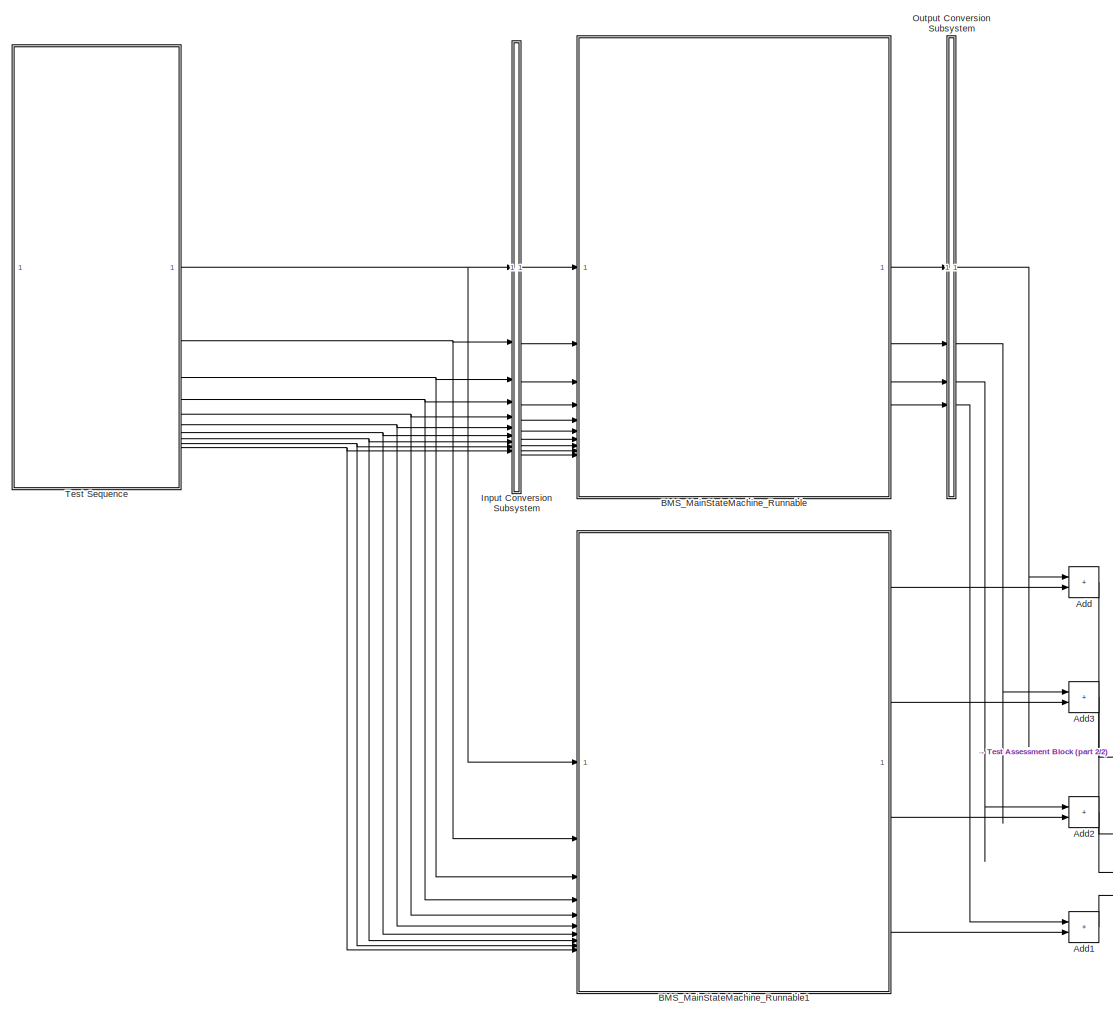
[diagram: root canvas - part 1/2, most of the canvas]
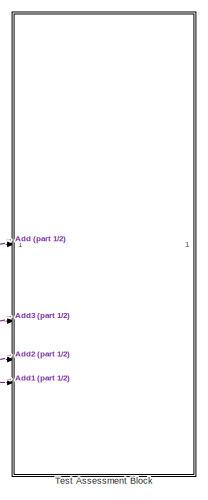
[diagram: root canvas - part 2/2, bottom right region]
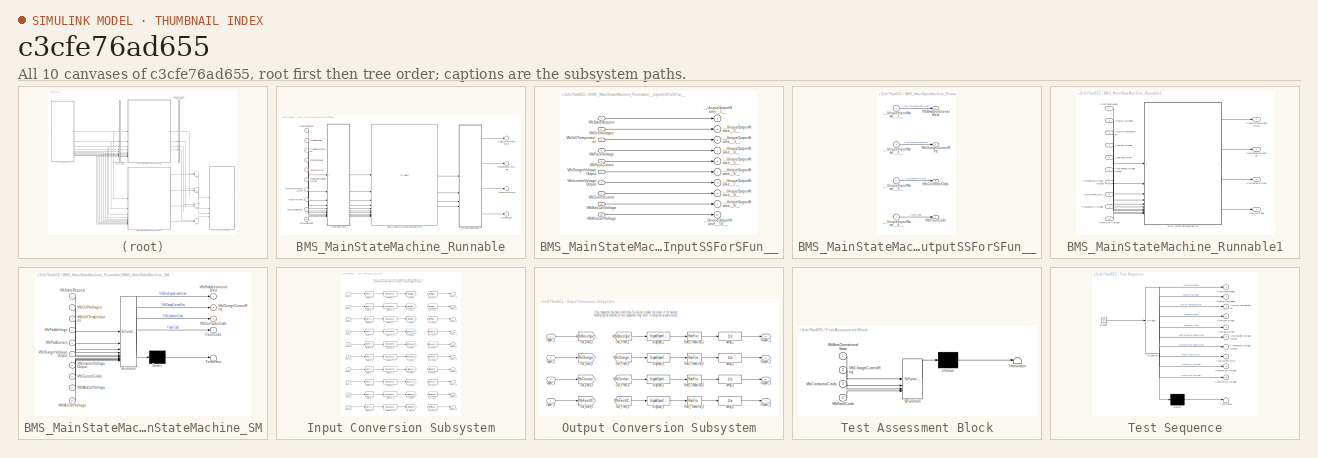
[diagram: thumbnail index - all 10 canvases of the model, root first then tree order]
MODEL slx_c3cfe76ad655
KIND model
CONFIG AbsTol = auto
CONFIG EnableMultiTasking = on
CONFIG FixedStep = auto
CONFIG MaxStep = auto
CONFIG MinStep = auto
CONFIG RelTol = 1e-3
CONFIG SampleTimeConstraint = Unconstrained
CONFIG SolverName = FixedStepDiscrete
CONFIG StartTime = 0.0
CONFIG StopTime = 10.0
WORKSPACE source: mxarray member
WORKSPACE BATT: object (value not decoded)
WORKSPACE ChrgBit: Simulink.Parameter (value not decoded)
WORKSPACE CntTime: Simulink.Parameter (value not decoded)
WORKSPACE CntTimeout: Simulink.Parameter (value not decoded)
WORKSPACE CurrTimeout: Simulink.Parameter (value not decoded)
WORKSPACE FaultResetTime: Simulink.Parameter (value not decoded)
WORKSPACE HighTempBit: Simulink.Parameter (value not decoded)
WORKSPACE InvrBit: Simulink.Parameter (value not decoded)
WORKSPACE LowTempBit: Simulink.Parameter (value not decoded)
WORKSPACE OverCurrBit: Simulink.Parameter (value not decoded)
WORKSPACE OverVoltBit: Simulink.Parameter (value not decoded)
WORKSPACE Schedule: object (value not decoded)
WORKSPACE TempTimeout: Simulink.Parameter (value not decoded)
WORKSPACE UnderVoltBit: Simulink.Parameter (value not decoded)
WORKSPACE VoltSensBit: Simulink.Parameter (value not decoded)
BLOCK [Sum] Add
  IconShape = rectangular
BLOCK [Sum] Add1
  IconShape = rectangular
BLOCK [Sum] Add2
  IconShape = rectangular
BLOCK [Sum] Add3
  IconShape = rectangular
BLOCK [SubSystem] BMS_MainStateMachine_Runnable
  DialogController = pil_create_dialog
  LoadFcn = try\n   if ~strcmp(rtw.pil.getPILVersion, '9.13 (R2022b)_15')\n      set_param(gcb, 'DialogController', '');\n      set_param(gcb, 'DialogControllerArgs', '');\n   end\ncatch e\n      set_param(gcb, 'DialogController', '');\n      set_param(gcb, 'DialogControllerArgs', '');\nend
  Tag = __SL_testing_harness_stub_
BLOCK [Reference] BMS_MainStateMachine_Runnable/BMS_MainStateMachine_Runnable_sfcn  REF=pil_lib/PIL Block
  SourceBlock = pil_lib/PIL Block
  SourceType = XILBlock
BLOCK [Outport] BMS_MainStateMachine_Runnable/VfbBmsOperationalState
BLOCK [Inport] BMS_MainStateMachine_Runnable/VfbCellTemperatures
  OutDataTypeStr = single
  Port = 3
  PortDimensions = BATT.Package.NumModules
  Unit = °C
BLOCK [Inport] BMS_MainStateMachine_Runnable/VfbCellVoltages
  OutDataTypeStr = single
  Port = 2
  PortDimensions = BATT.Package.NumModules
  Unit = V
BLOCK [Outport] BMS_MainStateMachine_Runnable/VfbChargeCurrentReq
  Port = 2
BLOCK [Inport] BMS_MainStateMachine_Runnable/VfbChargerVoltageOutput
  OutDataTypeStr = single
  Port = 6
  PortDimensions = 1
  Unit = V
BLOCK [Outport] BMS_MainStateMachine_Runnable/VfbContactorCmds
  BusOutputAsStruct = on
  OutDataTypeStr = Bus: BMS_strContactorCmds
  Port = 3
  SampleTime = [0.050000000000000003 0]
BLOCK [Inport] BMS_MainStateMachine_Runnable/VfbCurrentLimits
  OutDataTypeStr = single
  Port = 8
  Unit = A
BLOCK [Outport] BMS_MainStateMachine_Runnable/VfbFaultCode
  OutDataTypeStr = uint8
  Port = 4
  PortDimensions = 1
BLOCK [Inport] BMS_MainStateMachine_Runnable/VfbInverterVoltageOutput
  OutDataTypeStr = single
  Port = 7
  PortDimensions = 1
  Unit = V
BLOCK [Inport] BMS_MainStateMachine_Runnable/VfbMaxCellVoltage
  OutDataTypeStr = single
  Port = 9
  PortDimensions = 1
  Unit = V
BLOCK [Inport] BMS_MainStateMachine_Runnable/VfbMinCellVoltage
  OutDataTypeStr = single
  Port = 10
  PortDimensions = 1
  Unit = V
BLOCK [Inport] BMS_MainStateMachine_Runnable/VfbPackCurrent
  OutDataTypeStr = single
  Port = 5
  PortDimensions = 1
  Unit = A
BLOCK [Inport] BMS_MainStateMachine_Runnable/VfbPackVoltage
  OutDataTypeStr = single
  Port = 4
  PortDimensions = 1
  Unit = V
BLOCK [Inport] BMS_MainStateMachine_Runnable/VfbStateRequest
BLOCK [SubSystem] BMS_MainStateMachine_Runnable/__InputSSForSFun__
  PermitHierarchicalResolution = ExplicitOnly
BLOCK [Inport] BMS_MainStateMachine_Runnable/__InputSSForSFun__/VfbCellTemperatures
  OutDataTypeStr = single
  Port = 3
  PortDimensions = BATT.Package.NumModules
  Unit = °C
BLOCK [Inport] BMS_MainStateMachine_Runnable/__InputSSForSFun__/VfbCellVoltages
  OutDataTypeStr = single
  Port = 2
  PortDimensions = BATT.Package.NumModules
  Unit = V
BLOCK [Inport] BMS_MainStateMachine_Runnable/__InputSSForSFun__/VfbChargerVoltageOutput
  OutDataTypeStr = single
  Port = 6
  PortDimensions = 1
  Unit = V
BLOCK [Inport] BMS_MainStateMachine_Runnable/__InputSSForSFun__/VfbCurrentLimits
  OutDataTypeStr = single
  Port = 8
  Unit = A
BLOCK [Inport] BMS_MainStateMachine_Runnable/__InputSSForSFun__/VfbInverterVoltageOutput
  OutDataTypeStr = single
  Port = 7
  PortDimensions = 1
  Unit = V
BLOCK [Inport] BMS_MainStateMachine_Runnable/__InputSSForSFun__/VfbMaxCellVoltage
  OutDataTypeStr = single
  Port = 9
  PortDimensions = 1
  Unit = V
BLOCK [Inport] BMS_MainStateMachine_Runnable/__InputSSForSFun__/VfbMinCellVoltage
  OutDataTypeStr = single
  Port = 10
  PortDimensions = 1
  Unit = V
BLOCK [Inport] BMS_MainStateMachine_Runnable/__InputSSForSFun__/VfbPackCurrent
  OutDataTypeStr = single
  Port = 5
  PortDimensions = 1
  Unit = A
BLOCK [Inport] BMS_MainStateMachine_Runnable/__InputSSForSFun__/VfbPackVoltage
  OutDataTypeStr = single
  Port = 4
  PortDimensions = 1
  Unit = V
BLOCK [Inport] BMS_MainStateMachine_Runnable/__InputSSForSFun__/VfbStateRequest
BLOCK [Outport] BMS_MainStateMachine_Runnable/__InputSSForSFun__/__UniqueOutportName__10__
  Port = 10
BLOCK [Outport] BMS_MainStateMachine_Runnable/__InputSSForSFun__/__UniqueOutportName__1__
BLOCK [Outport] BMS_MainStateMachine_Runnable/__InputSSForSFun__/__UniqueOutportName__2__
  Port = 2
BLOCK [Outport] BMS_MainStateMachine_Runnable/__InputSSForSFun__/__UniqueOutportName__3__
  Port = 3
BLOCK [Outport] BMS_MainStateMachine_Runnable/__InputSSForSFun__/__UniqueOutportName__4__
  Port = 4
BLOCK [Outport] BMS_MainStateMachine_Runnable/__InputSSForSFun__/__UniqueOutportName__5__
  Port = 5
BLOCK [Outport] BMS_MainStateMachine_Runnable/__InputSSForSFun__/__UniqueOutportName__6__
  Port = 6
BLOCK [Outport] BMS_MainStateMachine_Runnable/__InputSSForSFun__/__UniqueOutportName__7__
  Port = 7
BLOCK [Outport] BMS_MainStateMachine_Runnable/__InputSSForSFun__/__UniqueOutportName__8__
  Port = 8
BLOCK [Outport] BMS_MainStateMachine_Runnable/__InputSSForSFun__/__UniqueOutportName__9__
  Port = 9
BLOCK [SubSystem] BMS_MainStateMachine_Runnable/__OutputSSForSFun__
  PermitHierarchicalResolution = ExplicitOnly
BLOCK [Outport] BMS_MainStateMachine_Runnable/__OutputSSForSFun__/VfbBmsOperationalState
BLOCK [Outport] BMS_MainStateMachine_Runnable/__OutputSSForSFun__/VfbChargeCurrentReq
  Port = 2
BLOCK [Outport] BMS_MainStateMachine_Runnable/__OutputSSForSFun__/VfbContactorCmds
  BusOutputAsStruct = on
  OutDataTypeStr = Bus: BMS_strContactorCmds
  Port = 3
  SampleTime = [0.050000000000000003 0]
BLOCK [Outport] BMS_MainStateMachine_Runnable/__OutputSSForSFun__/VfbFaultCode
  OutDataTypeStr = uint8
  Port = 4
  PortDimensions = 1
BLOCK [Inport] BMS_MainStateMachine_Runnable/__OutputSSForSFun__/__UniqueInportName__1__
BLOCK [Inport] BMS_MainStateMachine_Runnable/__OutputSSForSFun__/__UniqueInportName__2__
  Port = 2
BLOCK [Inport] BMS_MainStateMachine_Runnable/__OutputSSForSFun__/__UniqueInportName__3__
  Port = 3
BLOCK [Inport] BMS_MainStateMachine_Runnable/__OutputSSForSFun__/__UniqueInportName__4__
  Port = 4
BLOCK [SubSystem] BMS_MainStateMachine_Runnable1
  FunctionInterfaceSpec = Allow arguments (Optimized)
  PartitionName = BMS_MainStateMachine_Task
  Priority = 1
  RTWFcnNameOpts = Use subsystem name
  RTWFileNameOpts = Use subsystem name
  RTWSystemCode = Nonreusable function
  ScheduleAs = Periodic partition
  SystemSampleTime = Schedule.BMS_MainStateMachine_Task
  Tag = BMS_MainStateMachine_Task
  TreatAsAtomicUnit = on
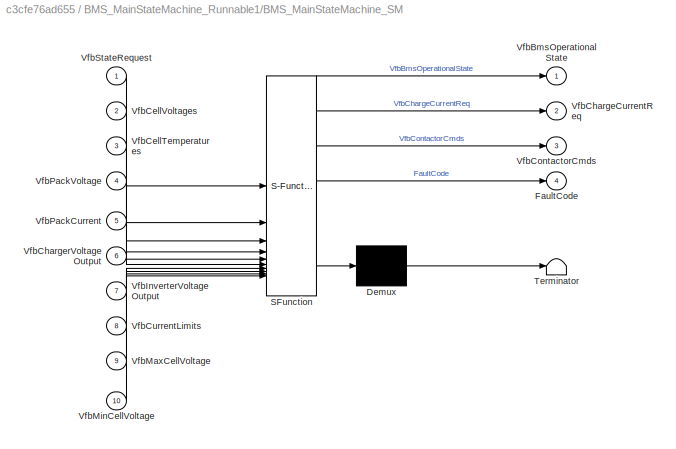
BLOCK [SubSystem] BMS_MainStateMachine_Runnable1/BMS_MainStateMachine_SM
  ErrorFcn = Stateflow.Translate.translate
  PermitHierarchicalResolution = ExplicitOnly
  SFBlockType = Chart
  TreatAsAtomicUnit = on
BLOCK [Demux] BMS_MainStateMachine_Runnable1/BMS_MainStateMachine_SM/ Demux 
  Outputs = 1
BLOCK [S-Function] BMS_MainStateMachine_Runnable1/BMS_MainStateMachine_SM/ SFunction 
  EnableBusSupport = on
  FunctionName = sf_sfun
  PortCounts = [10 5]
  SFcnIsStateOwnerBlock = off
  SFunctionDeploymentMode = off
  Tag = Stateflow S-Function 2
BLOCK [Terminator] BMS_MainStateMachine_Runnable1/BMS_MainStateMachine_SM/ Terminator 
BLOCK [Outport] BMS_MainStateMachine_Runnable1/BMS_MainStateMachine_SM/FaultCode
  Port = 4
BLOCK [Outport] BMS_MainStateMachine_Runnable1/BMS_MainStateMachine_SM/VfbBmsOperationalState
BLOCK [Inport] BMS_MainStateMachine_Runnable1/BMS_MainStateMachine_SM/VfbCellTemperatures
  Port = 3
BLOCK [Inport] BMS_MainStateMachine_Runnable1/BMS_MainStateMachine_SM/VfbCellVoltages
  Port = 2
BLOCK [Outport] BMS_MainStateMachine_Runnable1/BMS_MainStateMachine_SM/VfbChargeCurrentReq
  Port = 2
BLOCK [Inport] BMS_MainStateMachine_Runnable1/BMS_MainStateMachine_SM/VfbChargerVoltageOutput
  Port = 6
BLOCK [Outport] BMS_MainStateMachine_Runnable1/BMS_MainStateMachine_SM/VfbContactorCmds
  Port = 3
BLOCK [Inport] BMS_MainStateMachine_Runnable1/BMS_MainStateMachine_SM/VfbCurrentLimits
  Port = 8
BLOCK [Inport] BMS_MainStateMachine_Runnable1/BMS_MainStateMachine_SM/VfbInverterVoltageOutput
  Port = 7
BLOCK [Inport] BMS_MainStateMachine_Runnable1/BMS_MainStateMachine_SM/VfbMaxCellVoltage
  Port = 9
BLOCK [Inport] BMS_MainStateMachine_Runnable1/BMS_MainStateMachine_SM/VfbMinCellVoltage
  Port = 10
BLOCK [Inport] BMS_MainStateMachine_Runnable1/BMS_MainStateMachine_SM/VfbPackCurrent
  Port = 5
BLOCK [Inport] BMS_MainStateMachine_Runnable1/BMS_MainStateMachine_SM/VfbPackVoltage
  Port = 4
BLOCK [Inport] BMS_MainStateMachine_Runnable1/BMS_MainStateMachine_SM/VfbStateRequest
BLOCK [Outport] BMS_MainStateMachine_Runnable1/VfbBmsOperationalState
BLOCK [Inport] BMS_MainStateMachine_Runnable1/VfbCellTemperatures
  OutDataTypeStr = single
  Port = 3
  PortDimensions = BATT.Package.NumModules
  Unit = °C
BLOCK [Inport] BMS_MainStateMachine_Runnable1/VfbCellVoltages
  OutDataTypeStr = single
  Port = 2
  PortDimensions = BATT.Package.NumModules
  Unit = V
BLOCK [Outport] BMS_MainStateMachine_Runnable1/VfbChargeCurrentReq
  Port = 2
BLOCK [Inport] BMS_MainStateMachine_Runnable1/VfbChargerVoltageOutput
  OutDataTypeStr = single
  Port = 6
  PortDimensions = 1
  Unit = V
BLOCK [Outport] BMS_MainStateMachine_Runnable1/VfbContactorCmds
  BusOutputAsStruct = on
  OutDataTypeStr = Bus: BMS_strContactorCmds
  Port = 3
BLOCK [Inport] BMS_MainStateMachine_Runnable1/VfbCurrentLimits
  OutDataTypeStr = single
  Port = 8
  Unit = A
BLOCK [Outport] BMS_MainStateMachine_Runnable1/VfbFaultCode
  OutDataTypeStr = uint8
  Port = 4
  PortDimensions = 1
BLOCK [Inport] BMS_MainStateMachine_Runnable1/VfbInverterVoltageOutput
  OutDataTypeStr = single
  Port = 7
  PortDimensions = 1
  Unit = V
BLOCK [Inport] BMS_MainStateMachine_Runnable1/VfbMaxCellVoltage
  OutDataTypeStr = single
  Port = 9
  PortDimensions = 1
  Unit = V
BLOCK [Inport] BMS_MainStateMachine_Runnable1/VfbMinCellVoltage
  OutDataTypeStr = single
  Port = 10
  PortDimensions = 1
  Unit = V
BLOCK [Inport] BMS_MainStateMachine_Runnable1/VfbPackCurrent
  OutDataTypeStr = single
  Port = 5
  PortDimensions = 1
  Unit = A
BLOCK [Inport] BMS_MainStateMachine_Runnable1/VfbPackVoltage
  OutDataTypeStr = single
  Port = 4
  PortDimensions = 1
  Unit = V
BLOCK [Inport] BMS_MainStateMachine_Runnable1/VfbStateRequest
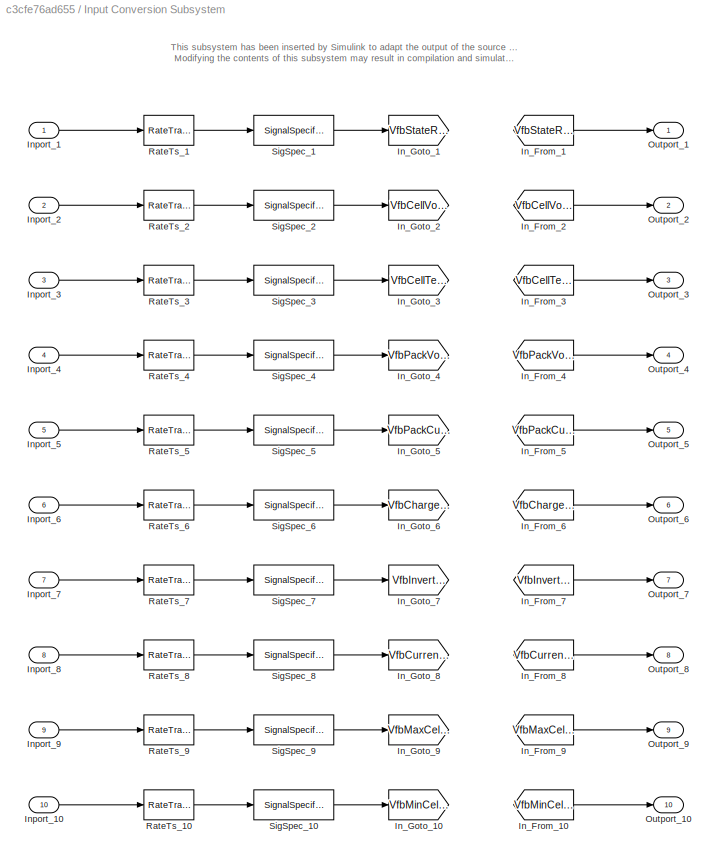
BLOCK [SubSystem] Input Conversion Subsystem
  AttributesFormatString = %<Description>
  Description = Signal spec.\nand routing
  Permissions = ReadOnly
  PermitHierarchicalResolution = ExplicitOnly
  Tag = __SLT_ICS__
  TreatAsGroupedWhenPropagatingVariantConditions = off
  UserDataPersistent = on
BLOCK [From] Input Conversion Subsystem/In_From_1
  GotoTag = VfbStateRequest_A
  TagVisibility = global
BLOCK [From] Input Conversion Subsystem/In_From_10
  GotoTag = VfbMinCellVoltage_A
  TagVisibility = global
BLOCK [From] Input Conversion Subsystem/In_From_2
  GotoTag = VfbCellVoltages_A
  TagVisibility = global
BLOCK [From] Input Conversion Subsystem/In_From_3
  GotoTag = VfbCellTemperatures_A
  TagVisibility = global
BLOCK [From] Input Conversion Subsystem/In_From_4
  GotoTag = VfbPackVoltage_A
  TagVisibility = global
BLOCK [From] Input Conversion Subsystem/In_From_5
  GotoTag = VfbPackCurrent_A
  TagVisibility = global
BLOCK [From] Input Conversion Subsystem/In_From_6
  GotoTag = VfbChargerVoltageOutput_A
  TagVisibility = global
BLOCK [From] Input Conversion Subsystem/In_From_7
  GotoTag = VfbInverterVoltageOutput_A
  TagVisibility = global
BLOCK [From] Input Conversion Subsystem/In_From_8
  GotoTag = VfbCurrentLimits_A
  TagVisibility = global
BLOCK [From] Input Conversion Subsystem/In_From_9
  GotoTag = VfbMaxCellVoltage_A
  TagVisibility = global
BLOCK [Goto] Input Conversion Subsystem/In_Goto_1
  GotoTag = VfbStateRequest_A
  TagVisibility = global
BLOCK [Goto] Input Conversion Subsystem/In_Goto_10
  GotoTag = VfbMinCellVoltage_A
  TagVisibility = global
BLOCK [Goto] Input Conversion Subsystem/In_Goto_2
  GotoTag = VfbCellVoltages_A
  TagVisibility = global
BLOCK [Goto] Input Conversion Subsystem/In_Goto_3
  GotoTag = VfbCellTemperatures_A
  TagVisibility = global
BLOCK [Goto] Input Conversion Subsystem/In_Goto_4
  GotoTag = VfbPackVoltage_A
  TagVisibility = global
BLOCK [Goto] Input Conversion Subsystem/In_Goto_5
  GotoTag = VfbPackCurrent_A
  TagVisibility = global
BLOCK [Goto] Input Conversion Subsystem/In_Goto_6
  GotoTag = VfbChargerVoltageOutput_A
  TagVisibility = global
BLOCK [Goto] Input Conversion Subsystem/In_Goto_7
  GotoTag = VfbInverterVoltageOutput_A
  TagVisibility = global
BLOCK [Goto] Input Conversion Subsystem/In_Goto_8
  GotoTag = VfbCurrentLimits_A
  TagVisibility = global
BLOCK [Goto] Input Conversion Subsystem/In_Goto_9
  GotoTag = VfbMaxCellVoltage_A
  TagVisibility = global
BLOCK [Inport] Input Conversion Subsystem/Inport_1
BLOCK [Inport] Input Conversion Subsystem/Inport_10
  Port = 10
BLOCK [Inport] Input Conversion Subsystem/Inport_2
  Port = 2
BLOCK [Inport] Input Conversion Subsystem/Inport_3
  Port = 3
BLOCK [Inport] Input Conversion Subsystem/Inport_4
  Port = 4
BLOCK [Inport] Input Conversion Subsystem/Inport_5
  Port = 5
BLOCK [Inport] Input Conversion Subsystem/Inport_6
  Port = 6
BLOCK [Inport] Input Conversion Subsystem/Inport_7
  Port = 7
BLOCK [Inport] Input Conversion Subsystem/Inport_8
  Port = 8
BLOCK [Inport] Input Conversion Subsystem/Inport_9
  Port = 9
BLOCK [Outport] Input Conversion Subsystem/Outport_1
BLOCK [Outport] Input Conversion Subsystem/Outport_10
  Port = 10
BLOCK [Outport] Input Conversion Subsystem/Outport_2
  Port = 2
BLOCK [Outport] Input Conversion Subsystem/Outport_3
  Port = 3
BLOCK [Outport] Input Conversion Subsystem/Outport_4
  Port = 4
BLOCK [Outport] Input Conversion Subsystem/Outport_5
  Port = 5
BLOCK [Outport] Input Conversion Subsystem/Outport_6
  Port = 6
BLOCK [Outport] Input Conversion Subsystem/Outport_7
  Port = 7
BLOCK [Outport] Input Conversion Subsystem/Outport_8
  Port = 8
BLOCK [Outport] Input Conversion Subsystem/Outport_9
  Port = 9
BLOCK [RateTransition] Input Conversion Subsystem/RateTs_1
  InitialCondition = BMS_State_Enum.BMS_Standby
  OutPortSampleTime = 0.05
BLOCK [RateTransition] Input Conversion Subsystem/RateTs_10
  OutPortSampleTime = 0.05
BLOCK [RateTransition] Input Conversion Subsystem/RateTs_2
  OutPortSampleTime = 0.05
BLOCK [RateTransition] Input Conversion Subsystem/RateTs_3
  OutPortSampleTime = 0.05
BLOCK [RateTransition] Input Conversion Subsystem/RateTs_4
  OutPortSampleTime = 0.05
BLOCK [RateTransition] Input Conversion Subsystem/RateTs_5
  OutPortSampleTime = 0.05
BLOCK [RateTransition] Input Conversion Subsystem/RateTs_6
  OutPortSampleTime = 0.05
BLOCK [RateTransition] Input Conversion Subsystem/RateTs_7
  OutPortSampleTime = 0.05
BLOCK [RateTransition] Input Conversion Subsystem/RateTs_8
  OutPortSampleTime = 0.05
BLOCK [RateTransition] Input Conversion Subsystem/RateTs_9
  OutPortSampleTime = 0.05
BLOCK [SignalSpecification] Input Conversion Subsystem/SigSpec_1
  Dimensions = [1]
  OutDataTypeStr = Enum: BMS_State_Enum
  SampleTime = 0.05
  SignalType = real
  VarSizeSig = No
BLOCK [SignalSpecification] Input Conversion Subsystem/SigSpec_10
  Dimensions = [1]
  OutDataTypeStr = single
  SampleTime = 0.05
  SignalType = real
  Unit = V
  VarSizeSig = No
BLOCK [SignalSpecification] Input Conversion Subsystem/SigSpec_2
  Dimensions = [3]
  OutDataTypeStr = single
  SampleTime = 0.05
  SignalType = real
  Unit = V
  VarSizeSig = No
BLOCK [SignalSpecification] Input Conversion Subsystem/SigSpec_3
  Dimensions = [3]
  OutDataTypeStr = single
  SampleTime = 0.05
  SignalType = real
  Unit = °C
  VarSizeSig = No
BLOCK [SignalSpecification] Input Conversion Subsystem/SigSpec_4
  Dimensions = [1]
  OutDataTypeStr = single
  SampleTime = 0.05
  SignalType = real
  Unit = V
  VarSizeSig = No
BLOCK [SignalSpecification] Input Conversion Subsystem/SigSpec_5
  Dimensions = [1]
  OutDataTypeStr = single
  SampleTime = 0.05
  SignalType = real
  Unit = A
  VarSizeSig = No
BLOCK [SignalSpecification] Input Conversion Subsystem/SigSpec_6
  Dimensions = [1]
  OutDataTypeStr = single
  SampleTime = 0.05
  SignalType = real
  Unit = V
  VarSizeSig = No
BLOCK [SignalSpecification] Input Conversion Subsystem/SigSpec_7
  Dimensions = [1]
  OutDataTypeStr = single
  SampleTime = 0.05
  SignalType = real
  Unit = V
  VarSizeSig = No
BLOCK [SignalSpecification] Input Conversion Subsystem/SigSpec_8
  Dimensions = [2]
  OutDataTypeStr = single
  SampleTime = 0.05
  SignalType = real
  Unit = A
  VarSizeSig = No
BLOCK [SignalSpecification] Input Conversion Subsystem/SigSpec_9
  Dimensions = [1]
  OutDataTypeStr = single
  SampleTime = 0.05
  SignalType = real
  Unit = V
  VarSizeSig = No
BLOCK [SubSystem] Output Conversion Subsystem
  AttributesFormatString = %<Description>
  Description = Signal spec.\nand routing
  Permissions = ReadOnly
  PermitHierarchicalResolution = ExplicitOnly
  Tag = __SLT_OCS__
  TreatAsGroupedWhenPropagatingVariantConditions = off
  UserDataPersistent = on
BLOCK [Inport] Output Conversion Subsystem/Inport_1
BLOCK [Inport] Output Conversion Subsystem/Inport_2
  Port = 2
BLOCK [Inport] Output Conversion Subsystem/Inport_3
  Port = 3
BLOCK [Inport] Output Conversion Subsystem/Inport_4
  Port = 4
BLOCK [From] Output Conversion Subsystem/Out_From_1
  GotoTag = VfbBmsOperationalState_A
  TagVisibility = global
BLOCK [From] Output Conversion Subsystem/Out_From_2
  GotoTag = VfbChargeCurrentReq_A
  TagVisibility = global
BLOCK [From] Output Conversion Subsystem/Out_From_3
  GotoTag = VfbContactorCmds_A
  TagVisibility = global
BLOCK [From] Output Conversion Subsystem/Out_From_4
  GotoTag = VfbFaultCode_A
  TagVisibility = global
BLOCK [Goto] Output Conversion Subsystem/Out_Goto_1
  GotoTag = VfbBmsOperationalState_A
  TagVisibility = global
BLOCK [Goto] Output Conversion Subsystem/Out_Goto_2
  GotoTag = VfbChargeCurrentReq_A
  TagVisibility = global
BLOCK [Goto] Output Conversion Subsystem/Out_Goto_3
  GotoTag = VfbContactorCmds_A
  TagVisibility = global
BLOCK [Goto] Output Conversion Subsystem/Out_Goto_4
  GotoTag = VfbFaultCode_A
  TagVisibility = global
BLOCK [Outport] Output Conversion Subsystem/Outport_1
BLOCK [Outport] Output Conversion Subsystem/Outport_2
  Port = 2
BLOCK [Outport] Output Conversion Subsystem/Outport_3
  Port = 3
BLOCK [Outport] Output Conversion Subsystem/Outport_4
  Port = 4
BLOCK [RateTransition] Output Conversion Subsystem/Rate_Transition_1
  InitialCondition = BMS_State_Enum.BMS_Standby
  OutPortSampleTimeOpt = Inherit
BLOCK [RateTransition] Output Conversion Subsystem/Rate_Transition_2
  OutPortSampleTimeOpt = Inherit
BLOCK [RateTransition] Output Conversion Subsystem/Rate_Transition_3
  OutPortSampleTimeOpt = Inherit
BLOCK [RateTransition] Output Conversion Subsystem/Rate_Transition_4
  OutPortSampleTimeOpt = Inherit
BLOCK [SignalSpecification] Output Conversion Subsystem/SigSpec_1
  Dimensions = [1]
  OutDataTypeStr = Enum: BMS_State_Enum
  SampleTime = 0.05
  SignalType = real
  VarSizeSig = No
BLOCK [SignalSpecification] Output Conversion Subsystem/SigSpec_2
  Dimensions = [1]
  OutDataTypeStr = single
  SampleTime = 0.05
  SignalType = real
  Unit = A
  VarSizeSig = No
BLOCK [SignalSpecification] Output Conversion Subsystem/SigSpec_3
  BusOutputAsStruct = on
  Dimensions = [1]
  OutDataTypeStr = Bus: BMS_strContactorCmds
  SampleTime = 0.05
  SignalType = real
  VarSizeSig = No
BLOCK [SignalSpecification] Output Conversion Subsystem/SigSpec_4
  Dimensions = [1]
  OutDataTypeStr = uint8
  SampleTime = 0.05
  SignalType = real
  VarSizeSig = No
BLOCK [UnitDelay] Output Conversion Subsystem/delay_1
  InitialCondition = BMS_State_Enum.BMS_Standby
  SampleTime = -1
BLOCK [UnitDelay] Output Conversion Subsystem/delay_2
  SampleTime = -1
BLOCK [UnitDelay] Output Conversion Subsystem/delay_3
  InitialCondition = IC3
  SampleTime = -1
BLOCK [UnitDelay] Output Conversion Subsystem/delay_4
  SampleTime = -1
BLOCK [SubSystem] Test Assessment Block
  ErrorFcn = Stateflow.Translate.translate
  PermitHierarchicalResolution = ExplicitOnly
  SFBlockType = Test Sequence
  ShowPortLabels = none
  Tag = __SLT_ASMT__
  TreatAsAtomicUnit = on
BLOCK [Demux] Test Assessment Block/ Demux 
  Outputs = 1
BLOCK [S-Function] Test Assessment Block/ SFunction 
  EnableBusSupport = off
  FunctionName = sf_sfun
  PortCounts = [4 1]
  SFcnIsStateOwnerBlock = off
  SFunctionDeploymentMode = off
  Tag = Stateflow S-Function 1
BLOCK [Terminator] Test Assessment Block/ Terminator 
BLOCK [Inport] Test Assessment Block/VfbBmsOperationalState
BLOCK [Inport] Test Assessment Block/VfbChargeCurrentReq
  Port = 2
BLOCK [Inport] Test Assessment Block/VfbContactorCmds
  Port = 3
BLOCK [Inport] Test Assessment Block/VfbFaultCode
  Port = 4
BLOCK [SubSystem] Test Sequence
  ErrorFcn = Stateflow.Translate.translate
  PermitHierarchicalResolution = ExplicitOnly
  SFBlockType = Test Sequence
  ShowPortLabels = none
  TreatAsAtomicUnit = on
BLOCK [Demux] Test Sequence/ Demux 
  Outputs = 1
BLOCK [Ground] Test Sequence/ Ground 
BLOCK [S-Function] Test Sequence/ SFunction 
  EnableBusSupport = off
  FunctionName = sf_sfun
  PortCounts = [1 11]
  SFcnIsStateOwnerBlock = off
  SFunctionDeploymentMode = off
  Tag = Stateflow S-Function 4
BLOCK [Terminator] Test Sequence/ Terminator 
BLOCK [Outport] Test Sequence/VfbCellTemperatures
  Port = 3
BLOCK [Outport] Test Sequence/VfbCellVoltages
  Port = 2
BLOCK [Outport] Test Sequence/VfbChargerVoltageOutput
  Port = 6
BLOCK [Outport] Test Sequence/VfbCurrentLimits
  Port = 8
BLOCK [Outport] Test Sequence/VfbInverterVoltageOutput
  Port = 7
BLOCK [Outport] Test Sequence/VfbMaxCellVoltage
  Port = 9
BLOCK [Outport] Test Sequence/VfbMinCellVoltage
  Port = 10
BLOCK [Outport] Test Sequence/VfbPackCurrent
  Port = 5
BLOCK [Outport] Test Sequence/VfbPackVoltage
  Port = 4
BLOCK [Outport] Test Sequence/VfbStateRequest
ANNOTATION Input Conversion Subsystem: This subsystem has been inserted by Simulink to adapt the output of the source blocks to the interface required by the harnessed component. Modifying the contents of this subsystem may result in compilation and simulation failure.
ANNOTATION Output Conversion Subsystem: This subsystem has been inserted by Simulink to adapt the output of the harnessed component to the interface required by the sink blocks. Modifying the contents of this subsystem may result in compilation and simulation failure.
LINE Add1:1 -> Test Assessment Block:4
LINE Add2:1 -> Test Assessment Block:3
LINE Add3:1 -> Test Assessment Block:2
LINE Add:1 -> Test Assessment Block:1
LINE BMS_MainStateMachine_Runnable1/BMS_MainStateMachine_SM:1 -> BMS_MainStateMachine_Runnable1/VfbBmsOperationalState:1
LINE BMS_MainStateMachine_Runnable1/BMS_MainStateMachine_SM:2 -> BMS_MainStateMachine_Runnable1/VfbChargeCurrentReq:1
LINE BMS_MainStateMachine_Runnable1/BMS_MainStateMachine_SM:3 -> BMS_MainStateMachine_Runnable1/VfbContactorCmds:1
LINE BMS_MainStateMachine_Runnable1/BMS_MainStateMachine_SM:4 -> BMS_MainStateMachine_Runnable1/VfbFaultCode:1
LINE BMS_MainStateMachine_Runnable1/VfbCellTemperatures:1 -> BMS_MainStateMachine_Runnable1/BMS_MainStateMachine_SM:3
LINE BMS_MainStateMachine_Runnable1/VfbCellVoltages:1 -> BMS_MainStateMachine_Runnable1/BMS_MainStateMachine_SM:2
LINE BMS_MainStateMachine_Runnable1/VfbChargerVoltageOutput:1 -> BMS_MainStateMachine_Runnable1/BMS_MainStateMachine_SM:6
LINE BMS_MainStateMachine_Runnable1/VfbCurrentLimits:1 -> BMS_MainStateMachine_Runnable1/BMS_MainStateMachine_SM:8
LINE BMS_MainStateMachine_Runnable1/VfbInverterVoltageOutput:1 -> BMS_MainStateMachine_Runnable1/BMS_MainStateMachine_SM:7
LINE BMS_MainStateMachine_Runnable1/VfbMaxCellVoltage:1 -> BMS_MainStateMachine_Runnable1/BMS_MainStateMachine_SM:9
LINE BMS_MainStateMachine_Runnable1/VfbMinCellVoltage:1 -> BMS_MainStateMachine_Runnable1/BMS_MainStateMachine_SM:10
LINE BMS_MainStateMachine_Runnable1/VfbPackCurrent:1 -> BMS_MainStateMachine_Runnable1/BMS_MainStateMachine_SM:5
LINE BMS_MainStateMachine_Runnable1/VfbPackVoltage:1 -> BMS_MainStateMachine_Runnable1/BMS_MainStateMachine_SM:4
LINE BMS_MainStateMachine_Runnable1/VfbStateRequest:1 -> BMS_MainStateMachine_Runnable1/BMS_MainStateMachine_SM:1
LINE BMS_MainStateMachine_Runnable1:1 -> Add:2
LINE BMS_MainStateMachine_Runnable1:2 -> Add3:2
LINE BMS_MainStateMachine_Runnable1:3 -> Add2:2
LINE BMS_MainStateMachine_Runnable1:4 -> Add1:2
LINE BMS_MainStateMachine_Runnable:1 -> Output Conversion Subsystem:1
LINE BMS_MainStateMachine_Runnable:2 -> Output Conversion Subsystem:2
LINE BMS_MainStateMachine_Runnable:3 -> Output Conversion Subsystem:3
LINE BMS_MainStateMachine_Runnable:4 -> Output Conversion Subsystem:4
LINE Input Conversion Subsystem/In_From_10:1 -> Input Conversion Subsystem/Outport_10:1
LINE Input Conversion Subsystem/In_From_1:1 -> Input Conversion Subsystem/Outport_1:1
LINE Input Conversion Subsystem/In_From_2:1 -> Input Conversion Subsystem/Outport_2:1
LINE Input Conversion Subsystem/In_From_3:1 -> Input Conversion Subsystem/Outport_3:1
LINE Input Conversion Subsystem/In_From_4:1 -> Input Conversion Subsystem/Outport_4:1
LINE Input Conversion Subsystem/In_From_5:1 -> Input Conversion Subsystem/Outport_5:1
LINE Input Conversion Subsystem/In_From_6:1 -> Input Conversion Subsystem/Outport_6:1
LINE Input Conversion Subsystem/In_From_7:1 -> Input Conversion Subsystem/Outport_7:1
LINE Input Conversion Subsystem/In_From_8:1 -> Input Conversion Subsystem/Outport_8:1
LINE Input Conversion Subsystem/In_From_9:1 -> Input Conversion Subsystem/Outport_9:1
LINE Input Conversion Subsystem/Inport_10:1 -> Input Conversion Subsystem/RateTs_10:1
LINE Input Conversion Subsystem/Inport_1:1 -> Input Conversion Subsystem/RateTs_1:1
LINE Input Conversion Subsystem/Inport_2:1 -> Input Conversion Subsystem/RateTs_2:1
LINE Input Conversion Subsystem/Inport_3:1 -> Input Conversion Subsystem/RateTs_3:1
LINE Input Conversion Subsystem/Inport_4:1 -> Input Conversion Subsystem/RateTs_4:1
LINE Input Conversion Subsystem/Inport_5:1 -> Input Conversion Subsystem/RateTs_5:1
LINE Input Conversion Subsystem/Inport_6:1 -> Input Conversion Subsystem/RateTs_6:1
LINE Input Conversion Subsystem/Inport_7:1 -> Input Conversion Subsystem/RateTs_7:1
LINE Input Conversion Subsystem/Inport_8:1 -> Input Conversion Subsystem/RateTs_8:1
LINE Input Conversion Subsystem/Inport_9:1 -> Input Conversion Subsystem/RateTs_9:1
LINE Input Conversion Subsystem/RateTs_10:1 -> Input Conversion Subsystem/SigSpec_10:1
LINE Input Conversion Subsystem/RateTs_1:1 -> Input Conversion Subsystem/SigSpec_1:1
LINE Input Conversion Subsystem/RateTs_2:1 -> Input Conversion Subsystem/SigSpec_2:1
LINE Input Conversion Subsystem/RateTs_3:1 -> Input Conversion Subsystem/SigSpec_3:1
LINE Input Conversion Subsystem/RateTs_4:1 -> Input Conversion Subsystem/SigSpec_4:1
LINE Input Conversion Subsystem/RateTs_5:1 -> Input Conversion Subsystem/SigSpec_5:1
LINE Input Conversion Subsystem/RateTs_6:1 -> Input Conversion Subsystem/SigSpec_6:1
LINE Input Conversion Subsystem/RateTs_7:1 -> Input Conversion Subsystem/SigSpec_7:1
LINE Input Conversion Subsystem/RateTs_8:1 -> Input Conversion Subsystem/SigSpec_8:1
LINE Input Conversion Subsystem/RateTs_9:1 -> Input Conversion Subsystem/SigSpec_9:1
LINE Input Conversion Subsystem/SigSpec_10:1 -> Input Conversion Subsystem/In_Goto_10:1
LINE Input Conversion Subsystem/SigSpec_1:1 -> Input Conversion Subsystem/In_Goto_1:1
LINE Input Conversion Subsystem/SigSpec_2:1 -> Input Conversion Subsystem/In_Goto_2:1
LINE Input Conversion Subsystem/SigSpec_3:1 -> Input Conversion Subsystem/In_Goto_3:1
LINE Input Conversion Subsystem/SigSpec_4:1 -> Input Conversion Subsystem/In_Goto_4:1
LINE Input Conversion Subsystem/SigSpec_5:1 -> Input Conversion Subsystem/In_Goto_5:1
LINE Input Conversion Subsystem/SigSpec_6:1 -> Input Conversion Subsystem/In_Goto_6:1
LINE Input Conversion Subsystem/SigSpec_7:1 -> Input Conversion Subsystem/In_Goto_7:1
LINE Input Conversion Subsystem/SigSpec_8:1 -> Input Conversion Subsystem/In_Goto_8:1
LINE Input Conversion Subsystem/SigSpec_9:1 -> Input Conversion Subsystem/In_Goto_9:1
LINE Input Conversion Subsystem:1 -> BMS_MainStateMachine_Runnable:1
LINE Input Conversion Subsystem:10 -> BMS_MainStateMachine_Runnable:10
LINE Input Conversion Subsystem:2 -> BMS_MainStateMachine_Runnable:2
LINE Input Conversion Subsystem:3 -> BMS_MainStateMachine_Runnable:3
LINE Input Conversion Subsystem:4 -> BMS_MainStateMachine_Runnable:4
LINE Input Conversion Subsystem:5 -> BMS_MainStateMachine_Runnable:5
LINE Input Conversion Subsystem:6 -> BMS_MainStateMachine_Runnable:6
LINE Input Conversion Subsystem:7 -> BMS_MainStateMachine_Runnable:7
LINE Input Conversion Subsystem:8 -> BMS_MainStateMachine_Runnable:8
LINE Input Conversion Subsystem:9 -> BMS_MainStateMachine_Runnable:9
LINE Output Conversion Subsystem/Inport_1:1 -> Output Conversion Subsystem/Out_Goto_1:1
LINE Output Conversion Subsystem/Inport_2:1 -> Output Conversion Subsystem/Out_Goto_2:1
LINE Output Conversion Subsystem/Inport_3:1 -> Output Conversion Subsystem/Out_Goto_3:1
LINE Output Conversion Subsystem/Inport_4:1 -> Output Conversion Subsystem/Out_Goto_4:1
LINE Output Conversion Subsystem/Out_From_1:1 -> Output Conversion Subsystem/SigSpec_1:1
LINE Output Conversion Subsystem/Out_From_2:1 -> Output Conversion Subsystem/SigSpec_2:1
LINE Output Conversion Subsystem/Out_From_3:1 -> Output Conversion Subsystem/SigSpec_3:1
LINE Output Conversion Subsystem/Out_From_4:1 -> Output Conversion Subsystem/SigSpec_4:1
LINE Output Conversion Subsystem/Rate_Transition_1:1 -> Output Conversion Subsystem/delay_1:1
LINE Output Conversion Subsystem/Rate_Transition_2:1 -> Output Conversion Subsystem/delay_2:1
LINE Output Conversion Subsystem/Rate_Transition_3:1 -> Output Conversion Subsystem/delay_3:1
LINE Output Conversion Subsystem/Rate_Transition_4:1 -> Output Conversion Subsystem/delay_4:1
LINE Output Conversion Subsystem/SigSpec_1:1 -> Output Conversion Subsystem/Rate_Transition_1:1
LINE Output Conversion Subsystem/SigSpec_2:1 -> Output Conversion Subsystem/Rate_Transition_2:1
LINE Output Conversion Subsystem/SigSpec_3:1 -> Output Conversion Subsystem/Rate_Transition_3:1
LINE Output Conversion Subsystem/SigSpec_4:1 -> Output Conversion Subsystem/Rate_Transition_4:1
LINE Output Conversion Subsystem/delay_1:1 -> Output Conversion Subsystem/Outport_1:1
LINE Output Conversion Subsystem/delay_2:1 -> Output Conversion Subsystem/Outport_2:1
LINE Output Conversion Subsystem/delay_3:1 -> Output Conversion Subsystem/Outport_3:1
LINE Output Conversion Subsystem/delay_4:1 -> Output Conversion Subsystem/Outport_4:1
LINE Output Conversion Subsystem:1 -> Add:1
LINE Output Conversion Subsystem:2 -> Add3:1
LINE Output Conversion Subsystem:3 -> Add2:1
LINE Output Conversion Subsystem:4 -> Add1:1
NET Test Sequence:1 -> BMS_MainStateMachine_Runnable1:1, Input Conversion Subsystem:1
NET Test Sequence:10 -> BMS_MainStateMachine_Runnable1:10, Input Conversion Subsystem:10
NET Test Sequence:2 -> BMS_MainStateMachine_Runnable1:2, Input Conversion Subsystem:2
NET Test Sequence:3 -> BMS_MainStateMachine_Runnable1:3, Input Conversion Subsystem:3
NET Test Sequence:4 -> BMS_MainStateMachine_Runnable1:4, Input Conversion Subsystem:4
NET Test Sequence:5 -> BMS_MainStateMachine_Runnable1:5, Input Conversion Subsystem:5
NET Test Sequence:6 -> BMS_MainStateMachine_Runnable1:6, Input Conversion Subsystem:6
NET Test Sequence:7 -> BMS_MainStateMachine_Runnable1:7, Input Conversion Subsystem:7
NET Test Sequence:8 -> BMS_MainStateMachine_Runnable1:8, Input Conversion Subsystem:8
NET Test Sequence:9 -> BMS_MainStateMachine_Runnable1:9, Input Conversion Subsystem:9
note: NET lines group one-source signal fan-out (src -> all destinations, sorted); 1:1 wires keep LINE
CHART Test Assessment Block states=3 transitions=10
  STATE_LABEL 'Run\n\n'
  STATE_LABEL 'step_1_1'
  STATE_LABEL 'step_1_2'
  STATE_LABEL '[t < 5\n]'
  STATE_LABEL '[~in(Run.step_1_1)]'
  STATE_LABEL '[~in(Run.step_1_2)]'
  STATE_LABEL 'step_1_1'
  STATE_LABEL 'step_1_2'
CHART BMS_MainStateMachine_Runnable1/BMS_MainStateMachine_SM states=52 transitions=69
  STATE_LABEL 'FaultMonotorig'
  STATE_LABEL 'FaultReset'
  STATE_LABEL 'WaitFaultReset'
  STATE_LABEL 'ResetFaultCode\nen: FaultCode = uint8(0);'
  STATE_LABEL '[VfbStateRequest == BMS_State_Enum.BMS_FaultReset && ...\n after(FaultResetTime, msec)]'
  STATE_LABEL 'MonitorCurrLim'
  STATE_LABEL 'NoCurrLimFault\nen:\nFaultCode = bitand(FaultCode, bitcmp(bitshift(uint8(1),OverCurrBit)));'
  STATE_LABEL 'OverCurrLimFault\nen:FaultCode = bitor(FaultCode, bitshift(uint8(1),OverCurrBit));'
  STATE_LABEL '[VfbBmsOperationalState == BMS_State_Enum.BMS_Driving && ...\nduration(((VfbPackCurrent - VfbCurrentLimits(DchargeIndex)) > Current_Overthreshold) ...\n                                                > CurrTimeout, msec)]'
  STATE_LABEL '[VfbBmsOperationalState == BMS_State_Enum.BMS_Charging && ...\nduration(((VfbPackCurrent - VfbCurrentLimits(ChargeIndex)) > Current_Overthreshold) ...\n                                                > CurrTimeout, msec)]'
  STATE_LABEL 'MonitorCellTemp'
  STATE_LABEL 'NoCellTempFault\nen:\nFaultCode = bitand(FaultCode, bitcmp(bitshift(uint8(1),HighTempBit)));\nFaultCode = bitand(FaultCode, bitcmp(bitshift(uint8(1),LowTempBit)));\nen, du:\nMaxCellTemp = max(VfbCellTemperatures);\nMinCellTemp = min(VfbCellTemperatures);'
  STATE_LABEL 'HighCellTempFault\nen:FaultCode = bitor(FaultCode, bitshift(uint8(1),HighTempBit));'
  STATE_LABEL 'LowCellTempFault\nen:FaultCode = bitor(FaultCode, bitshift(uint8(1),LowTempBit));'
  STATE_LABEL '[duration((MinCellTemp < Temperature_Min) > TempTimeout, msec)]'
  STATE_LABEL '[duration((MaxCellTemp > Temperature_Max) > TempTimeout, msec)]'
  STATE_LABEL 'MonitorCellVoltage'
  STATE_LABEL 'NoCellTempFault\nen:\nFaultCode = bitand(FaultCode, bitcmp(bitshift(uint8(1),OverVoltBit)));\nFaultCode = bitand(FaultCode, bitcmp(bitshift(uint8(1),UnderVoltBit)));\nFaultCode = bitand(FaultCode, bitcmp(bitshift(uint8(1),VoltSensBit)));\nen, du:\nVoltDelta = abs(VfbPackVoltage - sum(VfbCellVoltages))'
  STATE_LABEL 'VoltSensFault\nen:FaultCode = bitor(FaultCode, bitshift(uint8(1),VoltSensBit));'
  STATE_LABEL 'UnderCellVoltFault\nen:FaultCode = bitor(FaultCode, bitshift(uint8(1),UnderVoltBit));'
  STATE_LABEL 'OverCellVoltFault\nen:FaultCode = bitor(FaultCode, bitshift(uint8(1),OverVoltBit));'
  STATE_LABEL '[VfbMaxCellVoltage >= Voltage_Over]'
  STATE_LABEL '[VfbMinCellVoltage <= Voltage_Under]'
  STATE_LABEL '[VoltDelta > Voltage_threshold]'
  STATE_LABEL 'FaultReset'
  STATE_LABEL 'WaitFaultReset'
  STATE_LABEL 'ResetFaultCode\nen: FaultCode = uint8(0);'
  STATE_LABEL '[VfbStateRequest == BMS_State_Enum.BMS_FaultReset && ...\n after(FaultResetTime, msec)]'
  STATE_LABEL 'WaitFaultReset'
  STATE_LABEL 'ResetFaultCode\nen: FaultCode = uint8(0);'
  STATE_LABEL 'MonitorCurrLim'
  STATE_LABEL 'NoCurrLimFault\nen:\nFaultCode = bitand(FaultCode, bitcmp(bitshift(uint8(1),OverCurrBit)));'
  STATE_LABEL 'OverCurrLimFault\nen:FaultCode = bitor(FaultCode, bitshift(uint8(1),OverCurrBit));'
  STATE_LABEL '[VfbBmsOperationalState == BMS_State_Enum.BMS_Driving && ...\nduration(((VfbPackCurrent - VfbCurrentLimits(DchargeIndex)) > Current_Overthreshold) ...\n                                                > CurrTimeout, msec)]'
  STATE_LABEL '[VfbBmsOperationalState == BMS_State_Enum.BMS_Charging && ...\nduration(((VfbPackCurrent - VfbCurrentLimits(ChargeIndex)) > Current_Overthreshold) ...\n                                                > CurrTimeout, msec)]'
  STATE_LABEL 'NoCurrLimFault\nen:\nFaultCode = bitand(FaultCode, bitcmp(bitshift(uint8(1),OverCurrBit)));'
  STATE_LABEL 'OverCurrLimFault\nen:FaultCode = bitor(FaultCode, bitshift(uint8(1),OverCurrBit));'
  STATE_LABEL 'MonitorCellTemp'
  STATE_LABEL 'NoCellTempFault\nen:\nFaultCode = bitand(FaultCode, bitcmp(bitshift(uint8(1),HighTempBit)));\nFaultCode = bitand(FaultCode, bitcmp(bitshift(uint8(1),LowTempBit)));\nen, du:\nMaxCellTemp = max(VfbCellTemperatures);\nMinCellTemp = min(VfbCellTemperatures);'
  STATE_LABEL 'HighCellTempFault\nen:FaultCode = bitor(FaultCode, bitshift(uint8(1),HighTempBit));'
CHART Test Sequence states=1 transitions=1
  STATE_LABEL 'Run\n\n%% Initialize data outputs.\nVfbStateRequest = BMS_State_Enum.BMS_Standby;\nVfbCellVoltages = single(zeros(3, 1));\nVfbCellTemperatures = single(zeros(3, 1));\nVfbPackVoltage = single(0);\nVfbPackCurrent = single(0);\nVfbChargerVoltageOutput = single(0);\nVfbInverterVoltageOutput = single(0);\nVfbCurrentLimits = single(zeros(2, 1));\nVfbMaxCellVoltage = single(0);\nVfbMinCellVoltage = single(0);'
